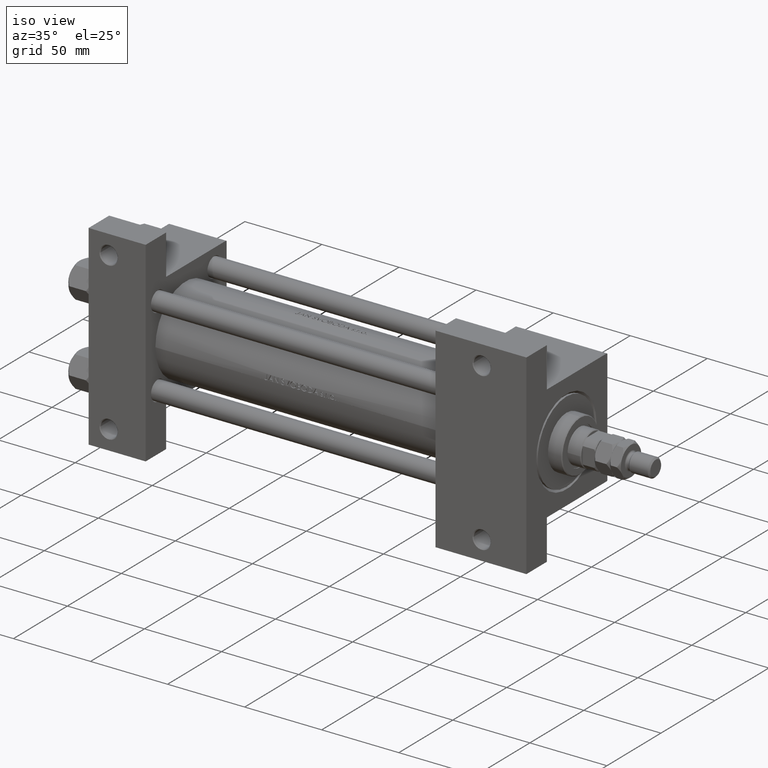
[diagram: clean part render]
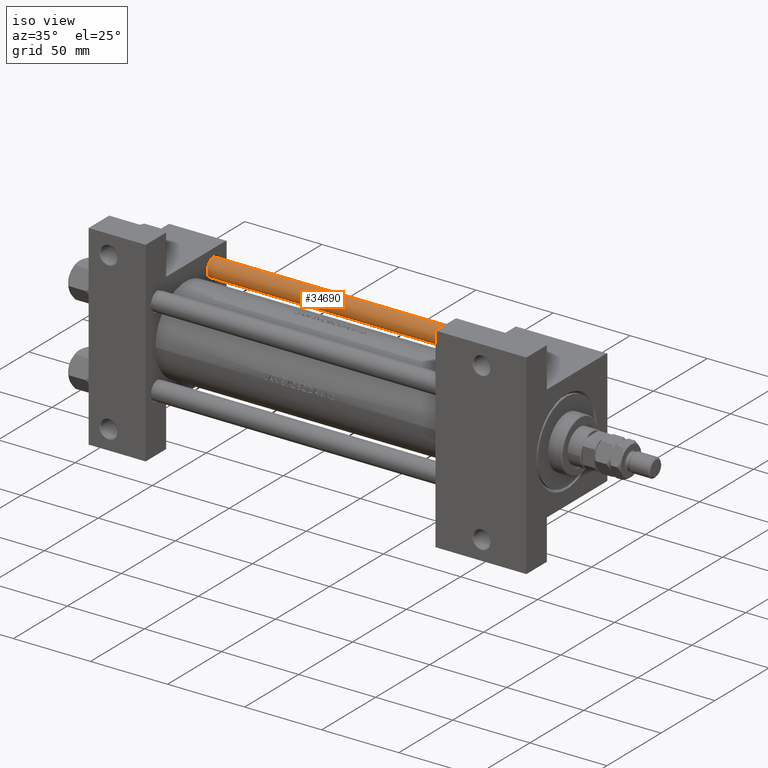
[diagram: same view with one face highlighted and labeled with its STEP entity id]
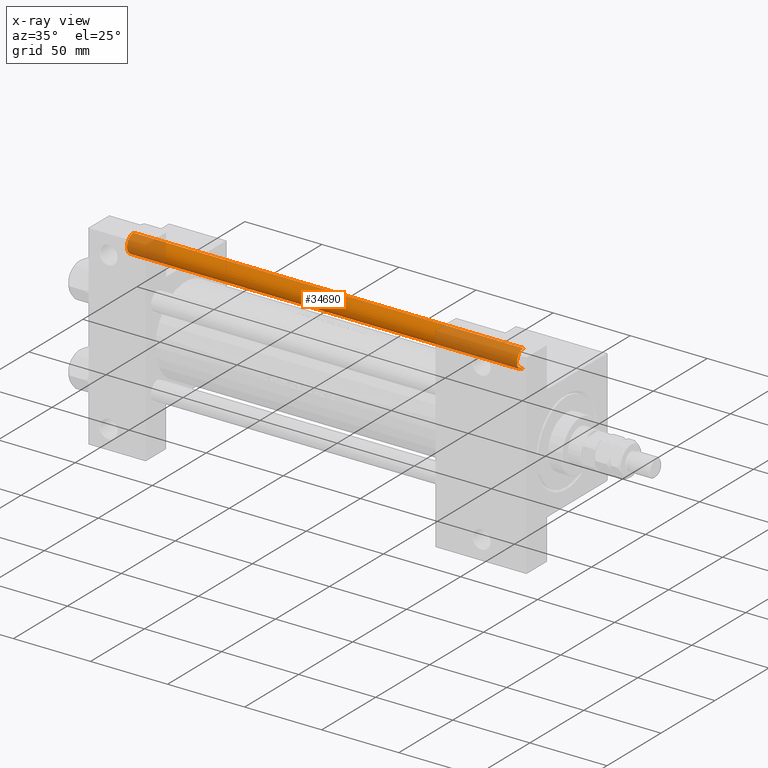
[diagram: x-ray of the same camera — body ghosted, the highlighted face saturated]
A machine part, iso view. The second image highlights one B-rep face of the part: STEP entity #34690.
The next image is the same camera in x-ray: the body ghosted, the highlighted face saturated — about 31% of this face is hidden behind the body in this view.
In plain terms, the highlighted cylindrical surface (edge-blend (fillet) strip) has radius 6 mm, axis along (-1, -0, -0).
Its self-contained STEP definition (entity closure, byte-faithful):
#2735 = CARTESIAN_POINT ( 'NONE',  ( 6.000000000000000888, 7.347880794884120722E-16, 254.0000000000000000 ) ) ;
#3649 = CARTESIAN_POINT ( 'NONE',  ( -6.000000000000000888, 0.000000000000000000, 253.5000000000000568 ) ) ;
#4023 = EDGE_CURVE ( 'NONE', #33179, #23847, #8773, .T. ) ;
#4671 = VERTEX_POINT ( 'NONE', #3649 ) ;
#5531 = DIRECTION ( 'NONE',  ( -1.000000000000000000, 0.000000000000000000, 0.000000000000000000 ) ) ;
#5661 = DIRECTION ( 'NONE',  ( 1.000000000000000000, 0.000000000000000000, 0.000000000000000000 ) ) ;
#6286 = CARTESIAN_POINT ( 'NONE',  ( -6.000000000000000888, 0.000000000000000000, 0.5000000000000004441 ) ) ;
#7939 = CIRCLE ( 'NONE', #25127, 6.000000000000000888 ) ;
#8646 = ORIENTED_EDGE ( 'NONE', *, *, #40245, .T. ) ;
#8773 = CIRCLE ( 'NONE', #36532, 6.000000000000000888 ) ;
#10230 = DIRECTION ( 'NONE',  ( -0.000000000000000000, -0.000000000000000000, 1.000000000000000000 ) ) ;
#12501 = VERTEX_POINT ( 'NONE', #44966 ) ;
#13453 = FACE_OUTER_BOUND ( 'NONE', #43760, .T. ) ;
#13959 = ORIENTED_EDGE ( 'NONE', *, *, #4023, .T. ) ;
#18833 = ORIENTED_EDGE ( 'NONE', *, *, #30003, .T. ) ;
#21291 = CARTESIAN_POINT ( 'NONE',  ( 0.000000000000000000, 0.000000000000000000, 0.5000000000000004441 ) ) ;
#23312 = VECTOR ( 'NONE', #34591, 1000.000000000000000 ) ;
#23847 = VERTEX_POINT ( 'NONE', #45875 ) ;
#25127 = AXIS2_PLACEMENT_3D ( 'NONE', #29700, #40951, #48119 ) ;
#26918 = CARTESIAN_POINT ( 'NONE',  ( -6.000000000000000888, 0.000000000000000000, 254.0000000000000000 ) ) ;
#29074 = CYLINDRICAL_SURFACE ( 'NONE', #33950, 6.000000000000000888 ) ;
#29700 = CARTESIAN_POINT ( 'NONE',  ( 0.000000000000000000, 0.000000000000000000, 253.5000000000000568 ) ) ;
#30003 = EDGE_CURVE ( 'NONE', #4671, #33179, #42765, .T. ) ;
#33179 = VERTEX_POINT ( 'NONE', #6286 ) ;
#33950 = AXIS2_PLACEMENT_3D ( 'NONE', #44648, #41753, #5531 ) ;
#34591 = DIRECTION ( 'NONE',  ( -0.000000000000000000, -0.000000000000000000, -1.000000000000000000 ) ) ;
#34690 = ADVANCED_FACE ( 'NONE', ( #13453 ), #29074, .T. ) ;
#34985 = DIRECTION ( 'NONE',  ( -0.000000000000000000, -0.000000000000000000, -1.000000000000000000 ) ) ;
#36532 = AXIS2_PLACEMENT_3D ( 'NONE', #21291, #10230, #5661 ) ;
#39415 = EDGE_CURVE ( 'NONE', #12501, #23847, #41877, .T. ) ;
#40245 = EDGE_CURVE ( 'NONE', #12501, #4671, #7939, .T. ) ;
#40951 = DIRECTION ( 'NONE',  ( 0.000000000000000000, 0.000000000000000000, -1.000000000000000000 ) ) ;
#41753 = DIRECTION ( 'NONE',  ( -0.000000000000000000, -0.000000000000000000, -1.000000000000000000 ) ) ;
#41877 = LINE ( 'NONE', #2735, #43834 ) ;
#42192 = ORIENTED_EDGE ( 'NONE', *, *, #39415, .F. ) ;
#42765 = LINE ( 'NONE', #26918, #23312 ) ;
#43760 = EDGE_LOOP ( 'NONE', ( #42192, #8646, #18833, #13959 ) ) ;
#43834 = VECTOR ( 'NONE', #34985, 1000.000000000000000 ) ;
#44648 = CARTESIAN_POINT ( 'NONE',  ( 0.000000000000000000, 0.000000000000000000, 254.0000000000000000 ) ) ;
#44966 = CARTESIAN_POINT ( 'NONE',  ( 6.000000000000000888, 7.347880794884120722E-16, 253.5000000000000568 ) ) ;
#45875 = CARTESIAN_POINT ( 'NONE',  ( 6.000000000000000888, 7.347880794884120722E-16, 0.5000000000000004441 ) ) ;
#48119 = DIRECTION ( 'NONE',  ( 1.000000000000000000, 0.000000000000000000, 0.000000000000000000 ) ) ;